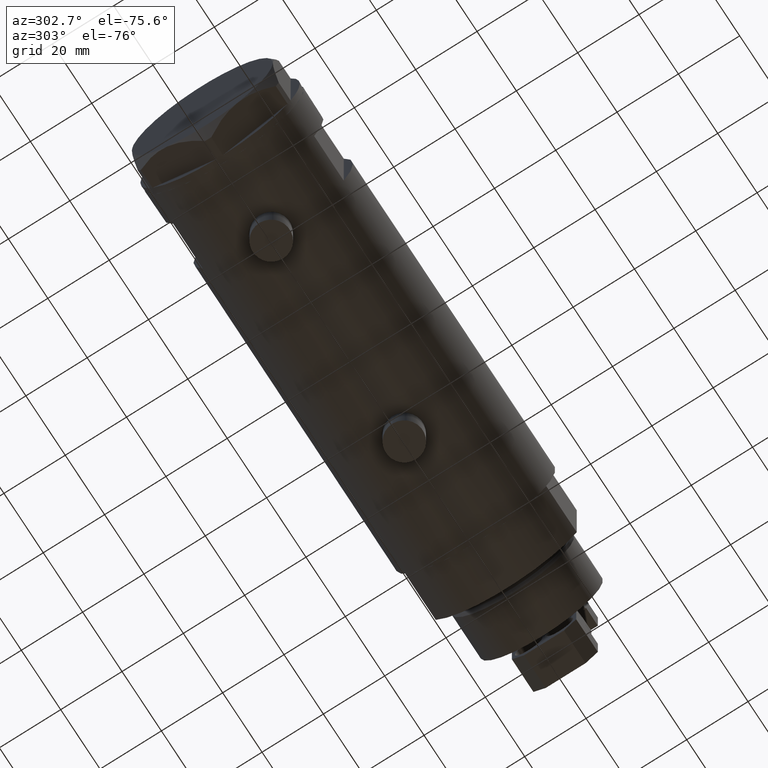
[diagram: clean part render]
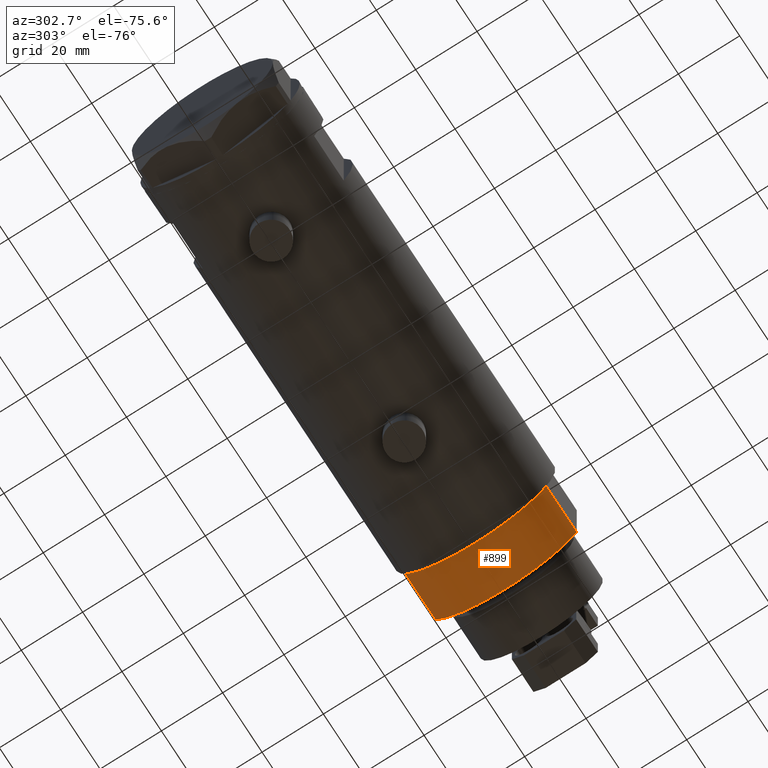
[diagram: same view with one face highlighted and labeled with its STEP entity id]
A machine part, auxiliary view. The second image highlights one B-rep face of the part: STEP entity #899.
In plain terms, the highlighted cylindrical surface (partial cylindrical patch) has radius 26 mm, axis along (-1, -0, 0).
Its self-contained STEP definition (entity closure, byte-faithful):
#3 = CARTESIAN_POINT ( 'NONE',  ( 12.12435565298215323, -22.99999999999999645, 15.50000000000000000 ) ) ;
#151 = AXIS2_PLACEMENT_3D ( 'NONE', #614, #2357, #188 ) ;
#188 = DIRECTION ( 'NONE',  ( 1.000000000000000000, 0.000000000000000000, 0.000000000000000000 ) ) ;
#511 = FACE_OUTER_BOUND ( 'NONE', #3984, .T. ) ;
#525 = CARTESIAN_POINT ( 'NONE',  ( 12.12435565298214080, 23.00000000000000355, 0.000000000000000000 ) ) ;
#603 = CARTESIAN_POINT ( 'NONE',  ( 0.000000000000000000, 0.000000000000000000, 15.50000000000000000 ) ) ;
#614 = CARTESIAN_POINT ( 'NONE',  ( 0.000000000000000000, 0.000000000000000000, 0.000000000000000000 ) ) ;
#785 = VECTOR ( 'NONE', #3282, 1000.000000000000000 ) ;
#899 = ADVANCED_FACE ( 'NONE', ( #511 ), #4842, .T. ) ;
#1065 = VERTEX_POINT ( 'NONE', #525 ) ;
#1090 = LINE ( 'NONE', #2289, #5526 ) ;
#1159 = LINE ( 'NONE', #2417, #785 ) ;
#1288 = EDGE_CURVE ( 'NONE', #2976, #4503, #1683, .T. ) ;
#1326 = VERTEX_POINT ( 'NONE', #4828 ) ;
#1442 = CARTESIAN_POINT ( 'NONE',  ( 12.12435565298214790, 23.00000000000000355, 15.50000000000000000 ) ) ;
#1678 = AXIS2_PLACEMENT_3D ( 'NONE', #2251, #3578, #5271 ) ;
#1683 = CIRCLE ( 'NONE', #1858, 26.00000000000000355 ) ;
#1858 = AXIS2_PLACEMENT_3D ( 'NONE', #603, #3215, #1977 ) ;
#1977 = DIRECTION ( 'NONE',  ( 1.000000000000000000, 0.000000000000000000, 0.000000000000000000 ) ) ;
#2251 = CARTESIAN_POINT ( 'NONE',  ( 0.000000000000000000, 0.000000000000000000, 15.50000000000000000 ) ) ;
#2289 = CARTESIAN_POINT ( 'NONE',  ( 12.12435565298215323, 23.00000000000000355, 0.000000000000000000 ) ) ;
#2357 = DIRECTION ( 'NONE',  ( 0.000000000000000000, 0.000000000000000000, 1.000000000000000000 ) ) ;
#2417 = CARTESIAN_POINT ( 'NONE',  ( 12.12435565298215323, -22.99999999999999645, 0.000000000000000000 ) ) ;
#2976 = VERTEX_POINT ( 'NONE', #3 ) ;
#3160 = EDGE_CURVE ( 'NONE', #1065, #4503, #1090, .T. ) ;
#3215 = DIRECTION ( 'NONE',  ( 0.000000000000000000, 0.000000000000000000, 1.000000000000000000 ) ) ;
#3282 = DIRECTION ( 'NONE',  ( -0.000000000000000000, -0.000000000000000000, 1.000000000000000000 ) ) ;
#3578 = DIRECTION ( 'NONE',  ( -0.000000000000000000, -0.000000000000000000, -1.000000000000000000 ) ) ;
#3984 = EDGE_LOOP ( 'NONE', ( #5287, #4043, #4078, #4275 ) ) ;
#4043 = ORIENTED_EDGE ( 'NONE', *, *, #4203, .F. ) ;
#4078 = ORIENTED_EDGE ( 'NONE', *, *, #4132, .T. ) ;
#4132 = EDGE_CURVE ( 'NONE', #1326, #1065, #4683, .T. ) ;
#4203 = EDGE_CURVE ( 'NONE', #1326, #2976, #1159, .T. ) ;
#4275 = ORIENTED_EDGE ( 'NONE', *, *, #3160, .T. ) ;
#4503 = VERTEX_POINT ( 'NONE', #1442 ) ;
#4520 = DIRECTION ( 'NONE',  ( -0.000000000000000000, -0.000000000000000000, 1.000000000000000000 ) ) ;
#4683 = CIRCLE ( 'NONE', #151, 26.00000000000000355 ) ;
#4828 = CARTESIAN_POINT ( 'NONE',  ( 12.12435565298215323, -22.99999999999999645, 0.000000000000000000 ) ) ;
#4842 = CYLINDRICAL_SURFACE ( 'NONE', #1678, 26.00000000000000355 ) ;
#5271 = DIRECTION ( 'NONE',  ( -1.000000000000000000, 0.000000000000000000, 0.000000000000000000 ) ) ;
#5287 = ORIENTED_EDGE ( 'NONE', *, *, #1288, .F. ) ;
#5526 = VECTOR ( 'NONE', #4520, 1000.000000000000000 ) ;